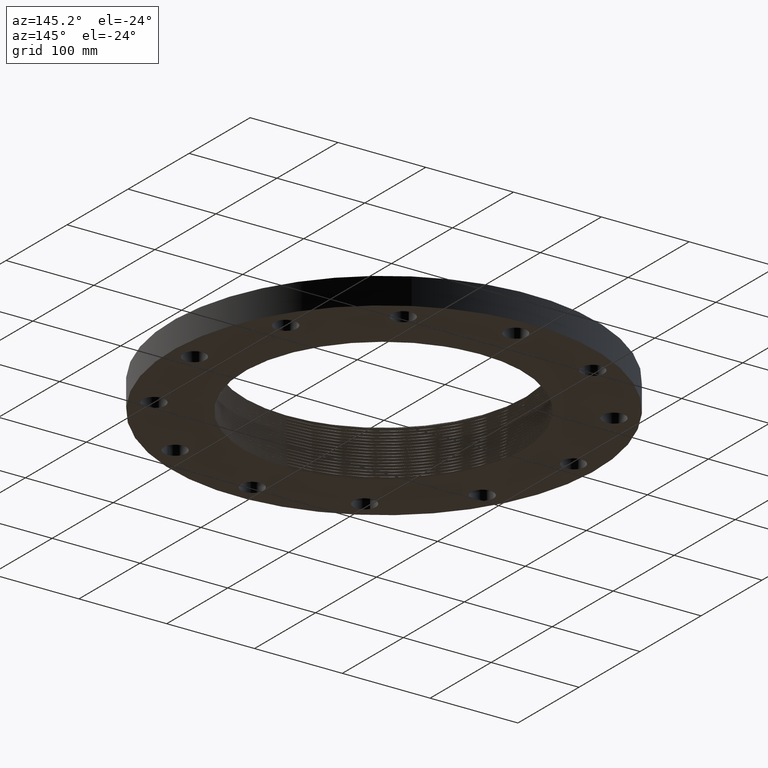
[diagram: clean part render]
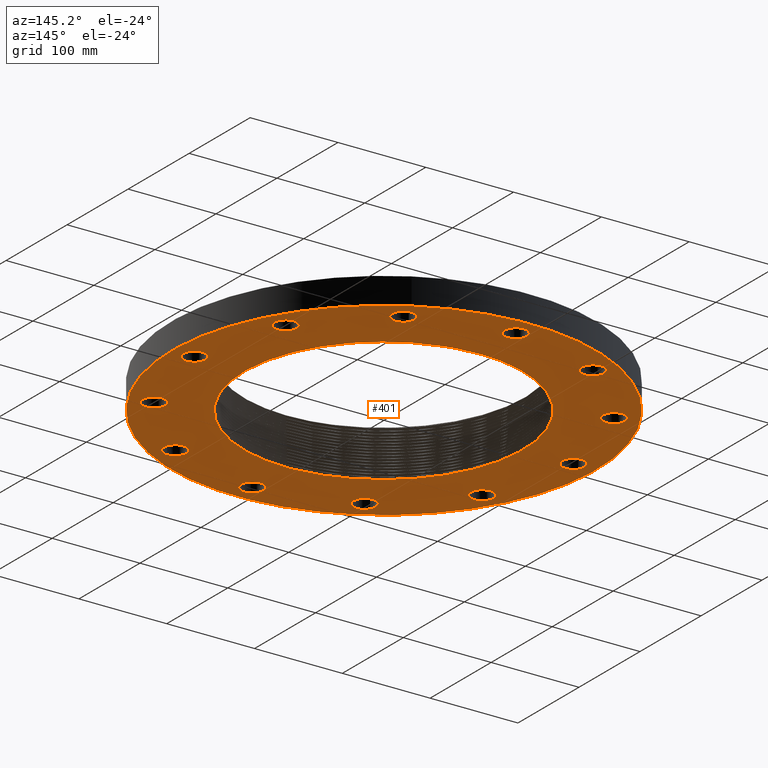
[diagram: same view with one face highlighted and labeled with its STEP entity id]
A machine part, auxiliary view. The second image highlights one B-rep face of the part: STEP entity #401.
In plain terms, the highlighted planar face has unit normal (0, 0, -1).
Its self-contained STEP definition (entity closure, byte-faithful):
#38=AXIS2_PLACEMENT_3D('Plane Axis2P3D',#35,#36,#37) ;
#42=AXIS2_PLACEMENT_3D('Circle Axis2P3D',#40,#41,$) ;
#51=AXIS2_PLACEMENT_3D('Circle Axis2P3D',#49,#50,$) ;
#173=AXIS2_PLACEMENT_3D('Circle Axis2P3D',#171,#172,$) ;
#187=AXIS2_PLACEMENT_3D('Circle Axis2P3D',#185,#186,$) ;
#196=AXIS2_PLACEMENT_3D('Circle Axis2P3D',#194,#195,$) ;
#205=AXIS2_PLACEMENT_3D('Circle Axis2P3D',#203,#204,$) ;
#214=AXIS2_PLACEMENT_3D('Circle Axis2P3D',#212,#213,$) ;
#223=AXIS2_PLACEMENT_3D('Circle Axis2P3D',#221,#222,$) ;
#232=AXIS2_PLACEMENT_3D('Circle Axis2P3D',#230,#231,$) ;
#241=AXIS2_PLACEMENT_3D('Circle Axis2P3D',#239,#240,$) ;
#250=AXIS2_PLACEMENT_3D('Circle Axis2P3D',#248,#249,$) ;
#259=AXIS2_PLACEMENT_3D('Circle Axis2P3D',#257,#258,$) ;
#268=AXIS2_PLACEMENT_3D('Circle Axis2P3D',#266,#267,$) ;
#277=AXIS2_PLACEMENT_3D('Circle Axis2P3D',#275,#276,$) ;
#286=AXIS2_PLACEMENT_3D('Circle Axis2P3D',#284,#285,$) ;
#295=AXIS2_PLACEMENT_3D('Circle Axis2P3D',#293,#294,$) ;
#304=AXIS2_PLACEMENT_3D('Circle Axis2P3D',#302,#303,$) ;
#313=AXIS2_PLACEMENT_3D('Circle Axis2P3D',#311,#312,$) ;
#322=AXIS2_PLACEMENT_3D('Circle Axis2P3D',#320,#321,$) ;
#331=AXIS2_PLACEMENT_3D('Circle Axis2P3D',#329,#330,$) ;
#340=AXIS2_PLACEMENT_3D('Circle Axis2P3D',#338,#339,$) ;
#349=AXIS2_PLACEMENT_3D('Circle Axis2P3D',#347,#348,$) ;
#358=AXIS2_PLACEMENT_3D('Circle Axis2P3D',#356,#357,$) ;
#367=AXIS2_PLACEMENT_3D('Circle Axis2P3D',#365,#366,$) ;
#376=AXIS2_PLACEMENT_3D('Circle Axis2P3D',#374,#375,$) ;
#385=AXIS2_PLACEMENT_3D('Circle Axis2P3D',#383,#384,$) ;
#394=AXIS2_PLACEMENT_3D('Circle Axis2P3D',#392,#393,$) ;
#35=CARTESIAN_POINT('Axis2P3D Location',(0.,0.,0.)) ;
#40=CARTESIAN_POINT('Axis2P3D Location',(0.,0.,0.)) ;
#44=CARTESIAN_POINT('Vertex',(4.55454261676,8.33703433799,1.1189649382E-015)) ;
#46=CARTESIAN_POINT('Vertex',(-4.55454261676,-8.33703433799,1.1189649382E-015)) ;
#49=CARTESIAN_POINT('Axis2P3D Location',(0.,0.,0.)) ;
#59=CARTESIAN_POINT('Control Point',(0.986032304333,6.11272234377,0.)) ;
#60=CARTESIAN_POINT('Control Point',(0.790646213031,6.14522088784,0.)) ;
#61=CARTESIAN_POINT('Control Point',(0.593928421204,6.16991210012,0.)) ;
#62=CARTESIAN_POINT('Control Point',(0.396297156812,6.18672365852,0.)) ;
#63=CARTESIAN_POINT('Control Point',(0.198178573751,6.19561678875,0.)) ;
#64=CARTESIAN_POINT('Control Point',(2.08791646425E-006,6.19658733052,0.)) ;
#65=CARTESIAN_POINT('Vertex',(0.986032320182,6.11272228641,-1.94189371495E-012)) ;
#67=CARTESIAN_POINT('Vertex',(2.08791646383E-006,6.19658733052,-1.09273919747E-018)) ;
#71=CARTESIAN_POINT('Control Point',(-2.97807473443,5.45133287148,0.)) ;
#72=CARTESIAN_POINT('Control Point',(-2.60851128839,5.65088826927,0.)) ;
#73=CARTESIAN_POINT('Control Point',(-2.22215726215,5.81916787577,0.)) ;
#74=CARTESIAN_POINT('Control Point',(-1.82254081106,5.95427591909,0.)) ;
#75=CARTESIAN_POINT('Control Point',(-1.21795566065,6.10304566866,0.)) ;
#76=CARTESIAN_POINT('Control Point',(-0.601430134952,6.17518681034,0.)) ;
#77=CARTESIAN_POINT('Control Point',(-0.401187478564,6.19043699618,0.)) ;
#78=CARTESIAN_POINT('Control Point',(-0.200564309609,6.19756957659,0.)) ;
#79=CARTESIAN_POINT('Control Point',(2.08791646432E-006,6.19658733052,0.)) ;
#80=CARTESIAN_POINT('Vertex',(-2.97807473443,5.45133287148,1.31128703696E-017)) ;
#84=CARTESIAN_POINT('Control Point',(-0.296565635956,-6.28349285369,0.)) ;
#85=CARTESIAN_POINT('Control Point',(-0.718726065215,-6.2615273549,0.)) ;
#86=CARTESIAN_POINT('Control Point',(-1.13893366049,-6.20410742561,0.)) ;
#87=CARTESIAN_POINT('Control Point',(-1.5531722477,-6.11145977618,0.)) ;
#88=CARTESIAN_POINT('Control Point',(-2.36204245377,-5.85747708931,0.)) ;
#89=CARTESIAN_POINT('Control Point',(-3.11665008906,-5.47229550604,0.)) ;
#90=CARTESIAN_POINT('Control Point',(-3.47682238488,-5.24836382959,0.)) ;
#91=CARTESIAN_POINT('Control Point',(-4.15592992784,-4.74219846502,0.)) ;
#92=CARTESIAN_POINT('Control Point',(-4.74071197762,-4.12996089353,0.)) ;
#93=CARTESIAN_POINT('Control Point',(-5.00657980352,-3.79993226911,0.)) ;
#94=CARTESIAN_POINT('Control Point',(-5.48005205164,-3.09852707409,0.)) ;
#95=CARTESIAN_POINT('Control Point',(-5.82953498906,-2.32792074897,0.)) ;
#96=CARTESIAN_POINT('Control Point',(-5.97130307914,-1.92887918699,0.)) ;
#97=CARTESIAN_POINT('Control Point',(-6.12835418162,-1.33106485369,0.)) ;
#98=CARTESIAN_POINT('Control Point',(-6.21066613432,-0.720307162525,0.)) ;
#99=CARTESIAN_POINT('Control Point',(-6.22913424957,-0.526585340772,0.)) ;
#100=CARTESIAN_POINT('Control Point',(-6.26369315724,0.0885149168715,0.)) ;
#101=CARTESIAN_POINT('Control Point',(-6.2224225699,0.704693407412,0.)) ;
#102=CARTESIAN_POINT('Control Point',(-6.15862773875,1.12279883956,0.)) ;
#103=CARTESIAN_POINT('Control Point',(-5.96118273019,1.94408584328,0.)) ;
#104=CARTESIAN_POINT('Control Point',(-5.62911410071,2.72029617966,0.)) ;
#105=CARTESIAN_POINT('Control Point',(-5.43066423845,3.09340514734,0.)) ;
#106=CARTESIAN_POINT('Control Point',(-4.97282673964,3.802347092,0.)) ;
#107=CARTESIAN_POINT('Control Point',(-4.40277551365,4.42431003934,0.)) ;
#108=CARTESIAN_POINT('Control Point',(-4.09215625092,4.7103751118,0.)) ;
#109=CARTESIAN_POINT('Control Point',(-3.6798806367,5.03006621545,0.)) ;
#110=CARTESIAN_POINT('Control Point',(-3.23811827521,5.30410909266,0.)) ;
#111=CARTESIAN_POINT('Control Point',(-3.15241307544,5.35492554163,0.)) ;
#112=CARTESIAN_POINT('Control Point',(-3.06571606964,5.40400865231,0.)) ;
#113=CARTESIAN_POINT('Control Point',(-2.97807473443,5.45133287148,0.)) ;
#114=CARTESIAN_POINT('Vertex',(-0.296565635956,-6.28349285369,0.)) ;
#118=CARTESIAN_POINT('Control Point',(-0.296565635956,-6.28349285369,0.)) ;
#119=CARTESIAN_POINT('Control Point',(-0.23728869281,-6.28597377757,0.)) ;
#120=CARTESIAN_POINT('Control Point',(-0.177983899512,-6.2877558494,0.)) ;
#121=CARTESIAN_POINT('Control Point',(-0.118648527668,-6.28883878955,0.)) ;
#122=CARTESIAN_POINT('Control Point',(-0.0593214395478,-6.28922188837,0.)) ;
#123=CARTESIAN_POINT('Control Point',(3.203984266E-008,-6.28890552405,0.)) ;
#124=CARTESIAN_POINT('Vertex',(3.20398503878E-008,-6.28890552405,2.18547839493E-018)) ;
#128=CARTESIAN_POINT('Control Point',(3.20398509473E-008,-6.28890552405,0.)) ;
#129=CARTESIAN_POINT('Control Point',(0.422602205199,-6.28665176575,0.)) ;
#130=CARTESIAN_POINT('Control Point',(0.844906713618,-6.24889995379,0.)) ;
#131=CARTESIAN_POINT('Control Point',(1.26294748113,-6.17568434953,0.)) ;
#132=CARTESIAN_POINT('Control Point',(1.87240532276,-6.01511106014,0.)) ;
#133=CARTESIAN_POINT('Control Point',(2.45538628776,-5.78062900774,0.)) ;
#134=CARTESIAN_POINT('Control Point',(2.64309402225,-5.69603682987,0.)) ;
#135=CARTESIAN_POINT('Control Point',(2.82710702808,-5.60385815551,0.)) ;
#136=CARTESIAN_POINT('Control Point',(3.00702253242,-5.50431700632,0.)) ;
#137=CARTESIAN_POINT('Vertex',(3.00702253242,-5.50431700632,0.)) ;
#141=CARTESIAN_POINT('Control Point',(1.49674603665,6.00810989484,0.)) ;
#142=CARTESIAN_POINT('Control Point',(1.85796428123,5.92020199294,0.)) ;
#143=CARTESIAN_POINT('Control Point',(2.21260815595,5.80517629637,0.)) ;
#144=CARTESIAN_POINT('Control Point',(2.55796446479,5.66369866984,0.)) ;
#145=CARTESIAN_POINT('Control Point',(3.26777037767,5.30854427406,0.)) ;
#146=CARTESIAN_POINT('Control Point',(3.91296128592,4.84487448107,0.)) ;
#147=CARTESIAN_POINT('Control Point',(4.23346663076,4.5705731008,0.)) ;
#148=CARTESIAN_POINT('Control Point',(4.82507836597,3.97038290513,0.)) ;
#149=CARTESIAN_POINT('Control Point',(5.30788263861,3.27901229873,0.)) ;
#150=CARTESIAN_POINT('Control Point',(5.51949666076,2.91362417214,0.)) ;
#151=CARTESIAN_POINT('Control Point',(5.82371179835,2.26786206356,0.)) ;
#152=CARTESIAN_POINT('Control Point',(6.03277744842,1.58621385583,0.)) ;
#153=CARTESIAN_POINT('Control Point',(6.10189343887,1.30267197283,0.)) ;
#154=CARTESIAN_POINT('Control Point',(6.19504467924,0.792481244592,0.)) ;
#155=CARTESIAN_POINT('Control Point',(6.23483535582,0.275575169496,0.)) ;
#156=CARTESIAN_POINT('Control Point',(6.24195090719,0.0487846121509,0.)) ;
#157=CARTESIAN_POINT('Control Point',(6.23282135385,-0.599333730584,0.)) ;
#158=CARTESIAN_POINT('Control Point',(6.13980525809,-1.24260685274,0.)) ;
#159=CARTESIAN_POINT('Control Point',(6.04412810524,-1.65472763445,0.)) ;
#160=CARTESIAN_POINT('Control Point',(5.78417533857,-2.45906788539,0.)) ;
#161=CARTESIAN_POINT('Control Point',(5.39314917076,-3.20887645987,0.)) ;
#162=CARTESIAN_POINT('Control Point',(5.16637538905,-3.56650912714,0.)) ;
#163=CARTESIAN_POINT('Control Point',(4.65825862231,-4.235560235,0.)) ;
#164=CARTESIAN_POINT('Control Point',(4.04580161923,-4.81124772526,0.)) ;
#165=CARTESIAN_POINT('Control Point',(3.71857976847,-5.07118266798,0.)) ;
#166=CARTESIAN_POINT('Control Point',(3.37119829788,-5.30283090096,0.)) ;
#167=CARTESIAN_POINT('Control Point',(3.00702253242,-5.50431700632,0.)) ;
#168=CARTESIAN_POINT('Vertex',(1.49674604063,6.00810991719,-3.12750700228E-013)) ;
#171=CARTESIAN_POINT('Axis2P3D Location',(1.1189649382E-015,-9.79094320929E-016,0.)) ;
#185=CARTESIAN_POINT('Axis2P3D Location',(8.50000000003,-4.89547160465E-016,0.)) ;
#189=CARTESIAN_POINT('Vertex',(8.93879128098,-0.239712769303,0.)) ;
#191=CARTESIAN_POINT('Vertex',(8.06120871909,0.239712769303,0.)) ;
#194=CARTESIAN_POINT('Axis2P3D Location',(8.50000000003,0.,0.)) ;
#203=CARTESIAN_POINT('Axis2P3D Location',(7.3612159322,-4.25000000002,0.)) ;
#207=CARTESIAN_POINT('Vertex',(7.10106792059,-3.82300701172,0.)) ;
#209=CARTESIAN_POINT('Vertex',(7.6213639438,-4.67699298832,0.)) ;
#212=CARTESIAN_POINT('Axis2P3D Location',(7.3612159322,-4.25000000002,0.)) ;
#221=CARTESIAN_POINT('Axis2P3D Location',(4.25000000002,-7.3612159322,0.)) ;
#225=CARTESIAN_POINT('Vertex',(4.23820170737,-6.86135515129,0.)) ;
#227=CARTESIAN_POINT('Vertex',(4.26179829266,-7.86107671311,0.)) ;
#230=CARTESIAN_POINT('Axis2P3D Location',(4.25000000002,-7.3612159322,0.)) ;
#239=CARTESIAN_POINT('Axis2P3D Location',(-5.59482469102E-016,-8.50000000003,0.)) ;
#243=CARTESIAN_POINT('Vertex',(0.239712769303,-8.06120871909,0.)) ;
#245=CARTESIAN_POINT('Vertex',(-0.239712769303,-8.93879128098,0.)) ;
#248=CARTESIAN_POINT('Axis2P3D Location',(-1.1189649382E-015,-8.50000000003,0.)) ;
#257=CARTESIAN_POINT('Axis2P3D Location',(-4.25000000002,-7.3612159322,0.)) ;
#261=CARTESIAN_POINT('Vertex',(-3.82300701172,-7.10106792059,0.)) ;
#263=CARTESIAN_POINT('Vertex',(-4.67699298832,-7.6213639438,-1.1189649382E-015)) ;
#266=CARTESIAN_POINT('Axis2P3D Location',(-4.25000000002,-7.3612159322,0.)) ;
#275=CARTESIAN_POINT('Axis2P3D Location',(-7.3612159322,-4.25000000002,0.)) ;
#279=CARTESIAN_POINT('Vertex',(-6.86135515129,-4.23820170737,0.)) ;
#281=CARTESIAN_POINT('Vertex',(-7.86107671311,-4.26179829266,0.)) ;
#284=CARTESIAN_POINT('Axis2P3D Location',(-7.3612159322,-4.25000000002,0.)) ;
#293=CARTESIAN_POINT('Axis2P3D Location',(-8.50000000003,-1.04902962957E-015,0.)) ;
#297=CARTESIAN_POINT('Vertex',(-8.06120871909,-0.239712769303,0.)) ;
#299=CARTESIAN_POINT('Vertex',(-8.93879128098,0.239712769303,0.)) ;
#302=CARTESIAN_POINT('Axis2P3D Location',(-8.50000000003,-7.69288395016E-016,0.)) ;
#311=CARTESIAN_POINT('Axis2P3D Location',(-7.3612159322,4.25000000002,0.)) ;
#315=CARTESIAN_POINT('Vertex',(-7.10106792059,3.82300701172,0.)) ;
#317=CARTESIAN_POINT('Vertex',(-7.6213639438,4.67699298832,0.)) ;
#320=CARTESIAN_POINT('Axis2P3D Location',(-7.3612159322,4.25000000002,0.)) ;
#329=CARTESIAN_POINT('Axis2P3D Location',(-4.25000000002,7.3612159322,0.)) ;
#333=CARTESIAN_POINT('Vertex',(-4.23820170737,6.86135515129,0.)) ;
#335=CARTESIAN_POINT('Vertex',(-4.26179829266,7.86107671311,0.)) ;
#338=CARTESIAN_POINT('Axis2P3D Location',(-4.25000000002,7.3612159322,0.)) ;
#347=CARTESIAN_POINT('Axis2P3D Location',(-4.19611851827E-016,8.50000000003,0.)) ;
#351=CARTESIAN_POINT('Vertex',(-0.239712769303,8.06120871909,0.)) ;
#353=CARTESIAN_POINT('Vertex',(0.239712769303,8.93879128098,0.)) ;
#356=CARTESIAN_POINT('Axis2P3D Location',(2.09805925913E-016,8.50000000003,0.)) ;
#365=CARTESIAN_POINT('Axis2P3D Location',(4.25000000002,7.3612159322,0.)) ;
#369=CARTESIAN_POINT('Vertex',(3.82300701172,7.10106792059,0.)) ;
#371=CARTESIAN_POINT('Vertex',(4.67699298832,7.6213639438,0.)) ;
#374=CARTESIAN_POINT('Axis2P3D Location',(4.25000000002,7.3612159322,0.)) ;
#383=CARTESIAN_POINT('Axis2P3D Location',(7.3612159322,4.25000000002,0.)) ;
#387=CARTESIAN_POINT('Vertex',(6.86135515129,4.23820170737,0.)) ;
#389=CARTESIAN_POINT('Vertex',(7.86107671311,4.26179829266,0.)) ;
#392=CARTESIAN_POINT('Axis2P3D Location',(7.3612159322,4.25000000002,0.)) ;
#36=DIRECTION('Axis2P3D Direction',(0.,0.,-0.0393700787402)) ;
#37=DIRECTION('Axis2P3D XDirection',(0.0393700787402,0.,0.)) ;
#41=DIRECTION('Axis2P3D Direction',(0.,0.,-0.0393700787402)) ;
#50=DIRECTION('Axis2P3D Direction',(0.,0.,-0.0393700787402)) ;
#172=DIRECTION('Axis2P3D Direction',(0.,0.,-0.0393700787402)) ;
#186=DIRECTION('Axis2P3D Direction',(0.,0.,-0.0393700787402)) ;
#195=DIRECTION('Axis2P3D Direction',(0.,0.,-0.0393700787402)) ;
#204=DIRECTION('Axis2P3D Direction',(0.,0.,-0.0393700787402)) ;
#213=DIRECTION('Axis2P3D Direction',(0.,0.,-0.0393700787402)) ;
#222=DIRECTION('Axis2P3D Direction',(0.,0.,-0.0393700787402)) ;
#231=DIRECTION('Axis2P3D Direction',(0.,0.,-0.0393700787402)) ;
#240=DIRECTION('Axis2P3D Direction',(0.,0.,-0.0393700787402)) ;
#249=DIRECTION('Axis2P3D Direction',(0.,0.,-0.0393700787402)) ;
#258=DIRECTION('Axis2P3D Direction',(0.,0.,-0.0393700787402)) ;
#267=DIRECTION('Axis2P3D Direction',(0.,0.,-0.0393700787402)) ;
#276=DIRECTION('Axis2P3D Direction',(0.,0.,-0.0393700787402)) ;
#285=DIRECTION('Axis2P3D Direction',(0.,0.,-0.0393700787402)) ;
#294=DIRECTION('Axis2P3D Direction',(0.,0.,-0.0393700787402)) ;
#303=DIRECTION('Axis2P3D Direction',(0.,0.,-0.0393700787402)) ;
#312=DIRECTION('Axis2P3D Direction',(0.,0.,-0.0393700787402)) ;
#321=DIRECTION('Axis2P3D Direction',(0.,0.,-0.0393700787402)) ;
#330=DIRECTION('Axis2P3D Direction',(0.,0.,-0.0393700787402)) ;
#339=DIRECTION('Axis2P3D Direction',(0.,0.,-0.0393700787402)) ;
#348=DIRECTION('Axis2P3D Direction',(0.,0.,-0.0393700787402)) ;
#357=DIRECTION('Axis2P3D Direction',(0.,0.,-0.0393700787402)) ;
#366=DIRECTION('Axis2P3D Direction',(0.,0.,-0.0393700787402)) ;
#375=DIRECTION('Axis2P3D Direction',(0.,0.,-0.0393700787402)) ;
#384=DIRECTION('Axis2P3D Direction',(0.,0.,-0.0393700787402)) ;
#393=DIRECTION('Axis2P3D Direction',(0.,0.,-0.0393700787402)) ;
#55=ORIENTED_EDGE('',*,*,#48,.T.) ;
#56=ORIENTED_EDGE('',*,*,#53,.T.) ;
#177=ORIENTED_EDGE('',*,*,#69,.T.) ;
#178=ORIENTED_EDGE('',*,*,#82,.F.) ;
#179=ORIENTED_EDGE('',*,*,#116,.F.) ;
#180=ORIENTED_EDGE('',*,*,#126,.T.) ;
#181=ORIENTED_EDGE('',*,*,#139,.T.) ;
#182=ORIENTED_EDGE('',*,*,#170,.F.) ;
#183=ORIENTED_EDGE('',*,*,#175,.F.) ;
#200=ORIENTED_EDGE('',*,*,#193,.F.) ;
#201=ORIENTED_EDGE('',*,*,#198,.F.) ;
#218=ORIENTED_EDGE('',*,*,#211,.F.) ;
#219=ORIENTED_EDGE('',*,*,#216,.F.) ;
#236=ORIENTED_EDGE('',*,*,#229,.F.) ;
#237=ORIENTED_EDGE('',*,*,#234,.F.) ;
#254=ORIENTED_EDGE('',*,*,#247,.F.) ;
#255=ORIENTED_EDGE('',*,*,#252,.F.) ;
#272=ORIENTED_EDGE('',*,*,#265,.F.) ;
#273=ORIENTED_EDGE('',*,*,#270,.F.) ;
#290=ORIENTED_EDGE('',*,*,#283,.F.) ;
#291=ORIENTED_EDGE('',*,*,#288,.F.) ;
#308=ORIENTED_EDGE('',*,*,#301,.F.) ;
#309=ORIENTED_EDGE('',*,*,#306,.F.) ;
#326=ORIENTED_EDGE('',*,*,#319,.F.) ;
#327=ORIENTED_EDGE('',*,*,#324,.F.) ;
#344=ORIENTED_EDGE('',*,*,#337,.F.) ;
#345=ORIENTED_EDGE('',*,*,#342,.F.) ;
#362=ORIENTED_EDGE('',*,*,#355,.F.) ;
#363=ORIENTED_EDGE('',*,*,#360,.F.) ;
#380=ORIENTED_EDGE('',*,*,#373,.F.) ;
#381=ORIENTED_EDGE('',*,*,#378,.F.) ;
#398=ORIENTED_EDGE('',*,*,#391,.F.) ;
#399=ORIENTED_EDGE('',*,*,#396,.F.) ;
#184=FACE_BOUND('',#176,.T.) ;
#202=FACE_BOUND('',#199,.T.) ;
#220=FACE_BOUND('',#217,.T.) ;
#238=FACE_BOUND('',#235,.T.) ;
#256=FACE_BOUND('',#253,.T.) ;
#274=FACE_BOUND('',#271,.T.) ;
#292=FACE_BOUND('',#289,.T.) ;
#310=FACE_BOUND('',#307,.T.) ;
#328=FACE_BOUND('',#325,.T.) ;
#346=FACE_BOUND('',#343,.T.) ;
#364=FACE_BOUND('',#361,.T.) ;
#382=FACE_BOUND('',#379,.T.) ;
#400=FACE_BOUND('',#397,.T.) ;
#401=ADVANCED_FACE('PartBody',(#57,#184,#202,#220,#238,#256,#274,#292,#310,#328,#346,#364,#382,#400),#39,.T.) ;
#58=B_SPLINE_CURVE_WITH_KNOTS('',5,(#59,#60,#61,#62,#63,#64),.UNSPECIFIED.,.F.,.U.,(6,6),(9.53408628603,45.2496036419),.UNSPECIFIED.) ;
#70=B_SPLINE_CURVE_WITH_KNOTS('',5,(#71,#72,#73,#74,#75,#76,#77,#78,#79),.UNSPECIFIED.,.F.,.U.,(6,3,6),(0.,75.6005869204,111.746815983),.UNSPECIFIED.) ;
#83=B_SPLINE_CURVE_WITH_KNOTS('',5,(#84,#85,#86,#87,#88,#89,#90,#91,#92,#93,#94,#95,#96,#97,#98,#99,#100,#101,#102,#103,#104,#105,#106,#107,#108,#109,#110,#111,#112,#113),.UNSPECIFIED.,.F.,.U.,(6,3,3,3,3,3,3,3,3,6),(0.,75.6266128742,151.291912893,226.963102255,302.594707753,337.490877565,413.105652348,488.735933801,564.352083074,582.280632154),.UNSPECIFIED.) ;
#117=B_SPLINE_CURVE_WITH_KNOTS('',5,(#118,#119,#120,#121,#122,#123),.UNSPECIFIED.,.F.,.U.,(6,6),(0.,10.6139273872),.UNSPECIFIED.) ;
#127=B_SPLINE_CURVE_WITH_KNOTS('',5,(#128,#129,#130,#131,#132,#133,#134,#135,#136),.UNSPECIFIED.,.F.,.U.,(6,3,6),(0.,75.6129047299,112.451431655),.UNSPECIFIED.) ;
#140=B_SPLINE_CURVE_WITH_KNOTS('',5,(#141,#142,#143,#144,#145,#146,#147,#148,#149,#150,#151,#152,#153,#154,#155,#156,#157,#158,#159,#160,#161,#162,#163,#164,#165,#166,#167),.UNSPECIFIED.,.F.,.U.,(6,3,3,3,3,3,3,3,6),(8.59094080208,75.6571830079,151.34555808,227.011006554,279.370227105,320.087625578,395.719649327,471.360551036,545.927213848),.UNSPECIFIED.) ;
#43=CIRCLE('generated circle',#42,9.50000000004) ;
#52=CIRCLE('generated circle',#51,9.50000000004) ;
#174=CIRCLE('generated circle',#173,6.19173913268) ;
#188=CIRCLE('generated circle',#187,0.500000000002) ;
#197=CIRCLE('generated circle',#196,0.500000000002) ;
#206=CIRCLE('generated circle',#205,0.500000000002) ;
#215=CIRCLE('generated circle',#214,0.500000000002) ;
#224=CIRCLE('generated circle',#223,0.500000000002) ;
#233=CIRCLE('generated circle',#232,0.500000000002) ;
#242=CIRCLE('generated circle',#241,0.500000000002) ;
#251=CIRCLE('generated circle',#250,0.500000000002) ;
#260=CIRCLE('generated circle',#259,0.500000000002) ;
#269=CIRCLE('generated circle',#268,0.500000000002) ;
#278=CIRCLE('generated circle',#277,0.500000000002) ;
#287=CIRCLE('generated circle',#286,0.500000000002) ;
#296=CIRCLE('generated circle',#295,0.500000000002) ;
#305=CIRCLE('generated circle',#304,0.500000000002) ;
#314=CIRCLE('generated circle',#313,0.500000000002) ;
#323=CIRCLE('generated circle',#322,0.500000000002) ;
#332=CIRCLE('generated circle',#331,0.500000000002) ;
#341=CIRCLE('generated circle',#340,0.500000000002) ;
#350=CIRCLE('generated circle',#349,0.500000000002) ;
#359=CIRCLE('generated circle',#358,0.500000000002) ;
#368=CIRCLE('generated circle',#367,0.500000000002) ;
#377=CIRCLE('generated circle',#376,0.500000000002) ;
#386=CIRCLE('generated circle',#385,0.500000000002) ;
#395=CIRCLE('generated circle',#394,0.500000000002) ;
#48=EDGE_CURVE('',#45,#47,#43,.T.) ;
#53=EDGE_CURVE('',#47,#45,#52,.T.) ;
#69=EDGE_CURVE('',#66,#68,#58,.T.) ;
#82=EDGE_CURVE('',#81,#68,#70,.T.) ;
#116=EDGE_CURVE('',#115,#81,#83,.T.) ;
#126=EDGE_CURVE('',#115,#125,#117,.T.) ;
#139=EDGE_CURVE('',#125,#138,#127,.T.) ;
#170=EDGE_CURVE('',#169,#138,#140,.T.) ;
#175=EDGE_CURVE('',#66,#169,#174,.T.) ;
#193=EDGE_CURVE('',#190,#192,#188,.T.) ;
#198=EDGE_CURVE('',#192,#190,#197,.T.) ;
#211=EDGE_CURVE('',#208,#210,#206,.T.) ;
#216=EDGE_CURVE('',#210,#208,#215,.T.) ;
#229=EDGE_CURVE('',#226,#228,#224,.T.) ;
#234=EDGE_CURVE('',#228,#226,#233,.T.) ;
#247=EDGE_CURVE('',#244,#246,#242,.T.) ;
#252=EDGE_CURVE('',#246,#244,#251,.T.) ;
#265=EDGE_CURVE('',#262,#264,#260,.T.) ;
#270=EDGE_CURVE('',#264,#262,#269,.T.) ;
#283=EDGE_CURVE('',#280,#282,#278,.T.) ;
#288=EDGE_CURVE('',#282,#280,#287,.T.) ;
#301=EDGE_CURVE('',#298,#300,#296,.T.) ;
#306=EDGE_CURVE('',#300,#298,#305,.T.) ;
#319=EDGE_CURVE('',#316,#318,#314,.T.) ;
#324=EDGE_CURVE('',#318,#316,#323,.T.) ;
#337=EDGE_CURVE('',#334,#336,#332,.T.) ;
#342=EDGE_CURVE('',#336,#334,#341,.T.) ;
#355=EDGE_CURVE('',#352,#354,#350,.T.) ;
#360=EDGE_CURVE('',#354,#352,#359,.T.) ;
#373=EDGE_CURVE('',#370,#372,#368,.T.) ;
#378=EDGE_CURVE('',#372,#370,#377,.T.) ;
#391=EDGE_CURVE('',#388,#390,#386,.T.) ;
#396=EDGE_CURVE('',#390,#388,#395,.T.) ;
#54=EDGE_LOOP('',(#55,#56)) ;
#176=EDGE_LOOP('',(#177,#178,#179,#180,#181,#182,#183)) ;
#199=EDGE_LOOP('',(#200,#201)) ;
#217=EDGE_LOOP('',(#218,#219)) ;
#235=EDGE_LOOP('',(#236,#237)) ;
#253=EDGE_LOOP('',(#254,#255)) ;
#271=EDGE_LOOP('',(#272,#273)) ;
#289=EDGE_LOOP('',(#290,#291)) ;
#307=EDGE_LOOP('',(#308,#309)) ;
#325=EDGE_LOOP('',(#326,#327)) ;
#343=EDGE_LOOP('',(#344,#345)) ;
#361=EDGE_LOOP('',(#362,#363)) ;
#379=EDGE_LOOP('',(#380,#381)) ;
#397=EDGE_LOOP('',(#398,#399)) ;
#57=FACE_OUTER_BOUND('',#54,.T.) ;
#39=PLANE('',#38) ;
#45=VERTEX_POINT('',#44) ;
#47=VERTEX_POINT('',#46) ;
#66=VERTEX_POINT('',#65) ;
#68=VERTEX_POINT('',#67) ;
#81=VERTEX_POINT('',#80) ;
#115=VERTEX_POINT('',#114) ;
#125=VERTEX_POINT('',#124) ;
#138=VERTEX_POINT('',#137) ;
#169=VERTEX_POINT('',#168) ;
#190=VERTEX_POINT('',#189) ;
#192=VERTEX_POINT('',#191) ;
#208=VERTEX_POINT('',#207) ;
#210=VERTEX_POINT('',#209) ;
#226=VERTEX_POINT('',#225) ;
#228=VERTEX_POINT('',#227) ;
#244=VERTEX_POINT('',#243) ;
#246=VERTEX_POINT('',#245) ;
#262=VERTEX_POINT('',#261) ;
#264=VERTEX_POINT('',#263) ;
#280=VERTEX_POINT('',#279) ;
#282=VERTEX_POINT('',#281) ;
#298=VERTEX_POINT('',#297) ;
#300=VERTEX_POINT('',#299) ;
#316=VERTEX_POINT('',#315) ;
#318=VERTEX_POINT('',#317) ;
#334=VERTEX_POINT('',#333) ;
#336=VERTEX_POINT('',#335) ;
#352=VERTEX_POINT('',#351) ;
#354=VERTEX_POINT('',#353) ;
#370=VERTEX_POINT('',#369) ;
#372=VERTEX_POINT('',#371) ;
#388=VERTEX_POINT('',#387) ;
#390=VERTEX_POINT('',#389) ;